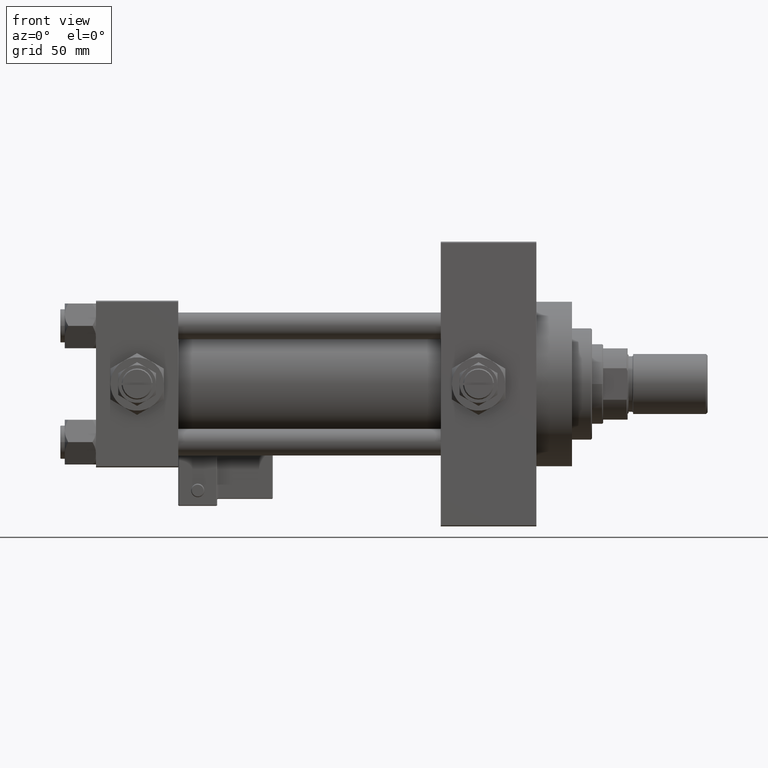
[diagram: clean part render]
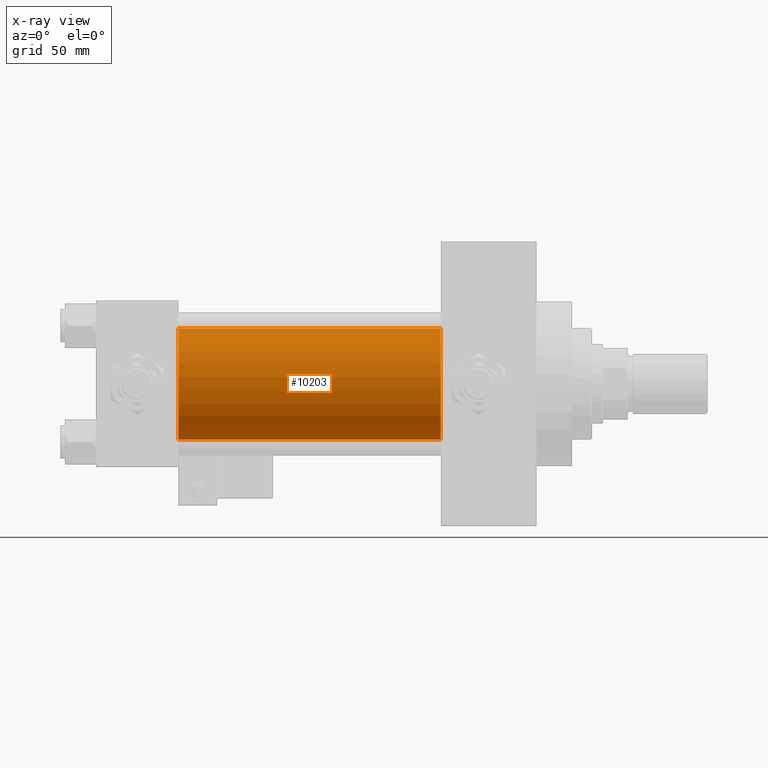
[diagram: x-ray — body ghosted, one internal face saturated and labeled with its STEP entity id]
A machine part, front view, then the same camera in x-ray: the body is ghosted and one INTERNAL B-rep face — a face not visible from any outside direction — is saturated and labeled: STEP entity #10203.
In plain terms, the highlighted cylindrical surface (partial cylindrical patch) has radius 25 mm, axis along (-1, -0, -0).
Its self-contained STEP definition (entity closure, byte-faithful):
#611 = VERTEX_POINT ( 'NONE', #11623 ) ;
#619 = CARTESIAN_POINT ( 'NONE',  ( 155.0000000000000000, -2.602085213965210642E-15, 25.00000000000000000 ) ) ;
#1222 = CARTESIAN_POINT ( 'NONE',  ( 37.00000000000000000, -2.602085213965210642E-15, 0.000000000000000000 ) ) ;
#4123 = DIRECTION ( 'NONE',  ( -1.000000000000000000, -0.000000000000000000, -0.000000000000000000 ) ) ;
#8231 = DIRECTION ( 'NONE',  ( -1.000000000000000000, -0.000000000000000000, -0.000000000000000000 ) ) ;
#10203 = ADVANCED_FACE ( 'NONE', ( #44045 ), #21168, .F. ) ;
#10595 = CARTESIAN_POINT ( 'NONE',  ( 155.0000000000000000, -2.602085213965210642E-15, 25.00000000000000000 ) ) ;
#11332 = AXIS2_PLACEMENT_3D ( 'NONE', #1222, #21175, #18026 ) ;
#11623 = CARTESIAN_POINT ( 'NONE',  ( 37.00000000000000000, -2.602085213965210642E-15, 25.00000000000000000 ) ) ;
#12872 = VECTOR ( 'NONE', #8231, 1000.000000000000000 ) ;
#13055 = CARTESIAN_POINT ( 'NONE',  ( 155.0000000000000000, -2.602085213965210642E-15, 0.000000000000000000 ) ) ;
#14029 = AXIS2_PLACEMENT_3D ( 'NONE', #44069, #23838, #44851 ) ;
#14906 = ORIENTED_EDGE ( 'NONE', *, *, #40254, .F. ) ;
#16046 = ORIENTED_EDGE ( 'NONE', *, *, #23436, .F. ) ;
#16747 = EDGE_LOOP ( 'NONE', ( #18566, #40396, #14906, #16046 ) ) ;
#18026 = DIRECTION ( 'NONE',  ( 0.000000000000000000, 0.000000000000000000, -1.000000000000000000 ) ) ;
#18566 = ORIENTED_EDGE ( 'NONE', *, *, #45795, .T. ) ;
#21168 = CYLINDRICAL_SURFACE ( 'NONE', #32589, 25.00000000000000000 ) ;
#21175 = DIRECTION ( 'NONE',  ( 1.000000000000000000, 0.000000000000000000, 0.000000000000000000 ) ) ;
#21844 = CARTESIAN_POINT ( 'NONE',  ( 155.0000000000000000, 4.595317839031724996E-16, -25.00000000000000000 ) ) ;
#23436 = EDGE_CURVE ( 'NONE', #45341, #611, #29670, .T. ) ;
#23838 = DIRECTION ( 'NONE',  ( 1.000000000000000000, 0.000000000000000000, 0.000000000000000000 ) ) ;
#25068 = VERTEX_POINT ( 'NONE', #32477 ) ;
#26390 = EDGE_CURVE ( 'NONE', #25068, #40204, #41046, .T. ) ;
#28804 = DIRECTION ( 'NONE',  ( 0.000000000000000000, 0.000000000000000000, 1.000000000000000000 ) ) ;
#28942 = VECTOR ( 'NONE', #29467, 1000.000000000000000 ) ;
#29467 = DIRECTION ( 'NONE',  ( -1.000000000000000000, -0.000000000000000000, -0.000000000000000000 ) ) ;
#29670 = LINE ( 'NONE', #619, #12872 ) ;
#31418 = CIRCLE ( 'NONE', #11332, 25.00000000000000000 ) ;
#32477 = CARTESIAN_POINT ( 'NONE',  ( 155.0000000000000000, 4.595317839031724996E-16, -25.00000000000000000 ) ) ;
#32589 = AXIS2_PLACEMENT_3D ( 'NONE', #13055, #4123, #28804 ) ;
#36679 = CIRCLE ( 'NONE', #14029, 25.00000000000000000 ) ;
#40204 = VERTEX_POINT ( 'NONE', #44840 ) ;
#40254 = EDGE_CURVE ( 'NONE', #611, #40204, #31418, .T. ) ;
#40396 = ORIENTED_EDGE ( 'NONE', *, *, #26390, .T. ) ;
#41046 = LINE ( 'NONE', #21844, #28942 ) ;
#44045 = FACE_OUTER_BOUND ( 'NONE', #16747, .T. ) ;
#44069 = CARTESIAN_POINT ( 'NONE',  ( 155.0000000000000000, -2.602085213965210642E-15, 0.000000000000000000 ) ) ;
#44840 = CARTESIAN_POINT ( 'NONE',  ( 37.00000000000000000, 4.595317839031724996E-16, -25.00000000000000000 ) ) ;
#44851 = DIRECTION ( 'NONE',  ( 0.000000000000000000, 0.000000000000000000, -1.000000000000000000 ) ) ;
#45341 = VERTEX_POINT ( 'NONE', #10595 ) ;
#45795 = EDGE_CURVE ( 'NONE', #45341, #25068, #36679, .T. ) ;